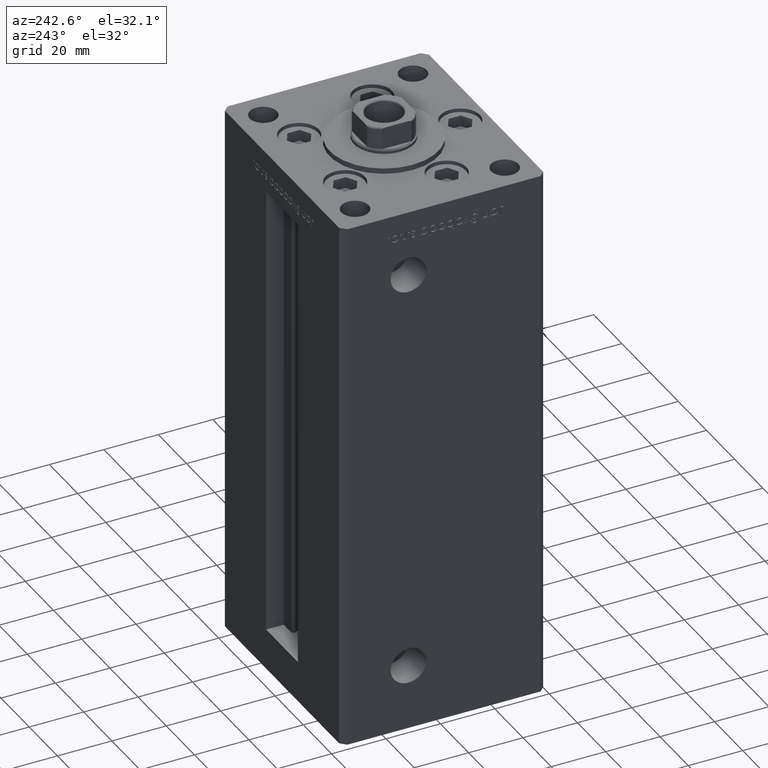
[diagram: clean part render]
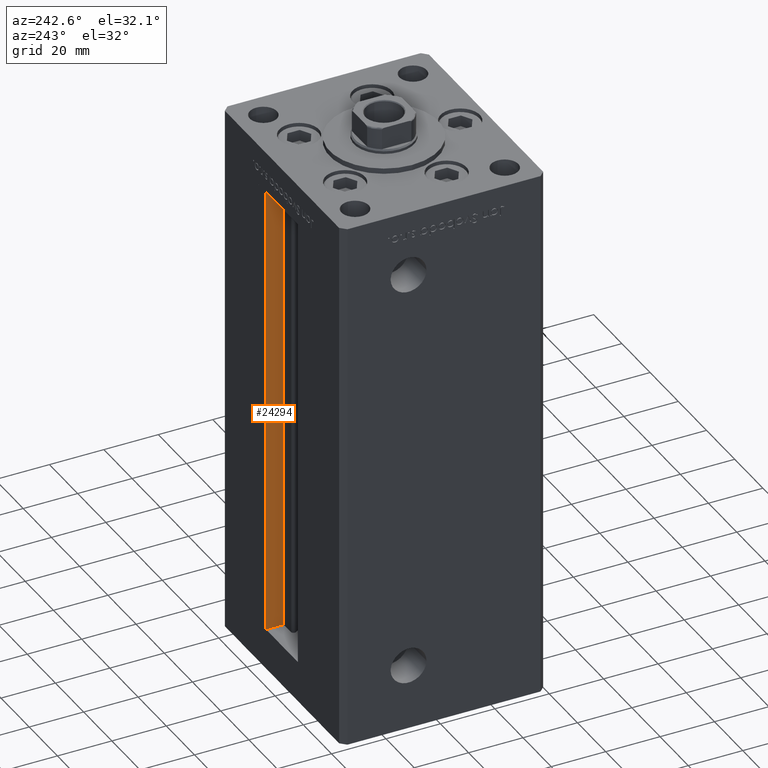
[diagram: same view with one face highlighted and labeled with its STEP entity id]
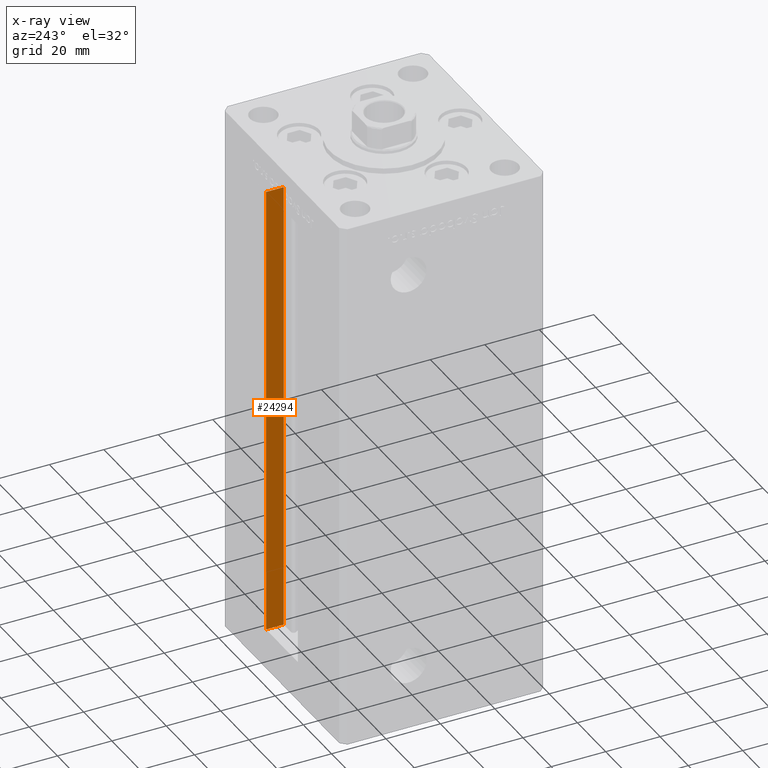
[diagram: x-ray of the same camera — body ghosted, the highlighted face saturated]
A machine part, auxiliary view. The second image highlights one B-rep face of the part: STEP entity #24294.
The next image is the same camera in x-ray: the body ghosted, the highlighted face saturated — about 0% of this face is hidden behind the body in this view.
In plain terms, the highlighted planar face has unit normal (1, 0, 0).
Its self-contained STEP definition (entity closure, byte-faithful):
#1629 = VECTOR ( 'NONE', #16323, 1000.000000000000000 ) ;
#2859 = DIRECTION ( 'NONE',  ( 0.000000000000000000, 0.000000000000000000, -1.000000000000000000 ) ) ;
#3368 = EDGE_CURVE ( 'NONE', #17424, #48930, #11595, .T. ) ;
#4531 = VECTOR ( 'NONE', #46853, 1000.000000000000000 ) ;
#5271 = CARTESIAN_POINT ( 'NONE',  ( 11.25000000000000000, 37.50000000000000000, 0.000000000000000000 ) ) ;
#6472 = DIRECTION ( 'NONE',  ( -0.000000000000000000, -0.000000000000000000, 1.000000000000000000 ) ) ;
#10593 = CARTESIAN_POINT ( 'NONE',  ( 11.25000000000000000, 30.99999999999999289, 0.000000000000000000 ) ) ;
#11595 = LINE ( 'NONE', #27623, #1629 ) ;
#12694 = CARTESIAN_POINT ( 'NONE',  ( 11.24999999999999289, 37.50000000000000000, 168.5000000000000000 ) ) ;
#13697 = AXIS2_PLACEMENT_3D ( 'NONE', #35251, #15757, #2859 ) ;
#15182 = ORIENTED_EDGE ( 'NONE', *, *, #19007, .T. ) ;
#15757 = DIRECTION ( 'NONE',  ( 1.000000000000000000, -0.000000000000000000, 0.000000000000000000 ) ) ;
#16323 = DIRECTION ( 'NONE',  ( -0.000000000000000000, -1.000000000000000000, 0.000000000000000000 ) ) ;
#16395 = CARTESIAN_POINT ( 'NONE',  ( 11.25000000000000000, 30.99999999999999289, 168.5000000000000000 ) ) ;
#17424 = VERTEX_POINT ( 'NONE', #12694 ) ;
#19007 = EDGE_CURVE ( 'NONE', #46251, #48930, #48360, .T. ) ;
#22274 = ORIENTED_EDGE ( 'NONE', *, *, #31295, .F. ) ;
#23823 = DIRECTION ( 'NONE',  ( -0.000000000000000000, -0.000000000000000000, 1.000000000000000000 ) ) ;
#24294 = ADVANCED_FACE ( 'NONE', ( #43436 ), #43177, .F. ) ;
#25071 = VERTEX_POINT ( 'NONE', #5271 ) ;
#25959 = CARTESIAN_POINT ( 'NONE',  ( 11.25000000000000000, 37.50000000000000000, 0.000000000000000000 ) ) ;
#26152 = VECTOR ( 'NONE', #23823, 1000.000000000000000 ) ;
#27623 = CARTESIAN_POINT ( 'NONE',  ( 11.25000000000000000, 0.000000000000000000, 168.5000000000000000 ) ) ;
#30735 = CARTESIAN_POINT ( 'NONE',  ( 11.25000000000000000, 30.99999999999999289, 0.000000000000000000 ) ) ;
#31295 = EDGE_CURVE ( 'NONE', #46251, #25071, #34700, .T. ) ;
#34700 = LINE ( 'NONE', #30735, #4531 ) ;
#35251 = CARTESIAN_POINT ( 'NONE',  ( 11.25000000000000000, 30.99999999999999289, 0.000000000000000000 ) ) ;
#36204 = CARTESIAN_POINT ( 'NONE',  ( 11.25000000000000000, 30.99999999999999289, 0.000000000000000000 ) ) ;
#41551 = EDGE_CURVE ( 'NONE', #25071, #17424, #42313, .T. ) ;
#41557 = EDGE_LOOP ( 'NONE', ( #46469, #22274, #15182, #41638 ) ) ;
#41638 = ORIENTED_EDGE ( 'NONE', *, *, #3368, .F. ) ;
#42313 = LINE ( 'NONE', #25959, #51954 ) ;
#43177 = PLANE ( 'NONE',  #13697 ) ;
#43436 = FACE_OUTER_BOUND ( 'NONE', #41557, .T. ) ;
#46251 = VERTEX_POINT ( 'NONE', #10593 ) ;
#46469 = ORIENTED_EDGE ( 'NONE', *, *, #41551, .F. ) ;
#46853 = DIRECTION ( 'NONE',  ( 0.000000000000000000, 1.000000000000000000, 0.000000000000000000 ) ) ;
#48360 = LINE ( 'NONE', #36204, #26152 ) ;
#48930 = VERTEX_POINT ( 'NONE', #16395 ) ;
#51954 = VECTOR ( 'NONE', #6472, 1000.000000000000000 ) ;